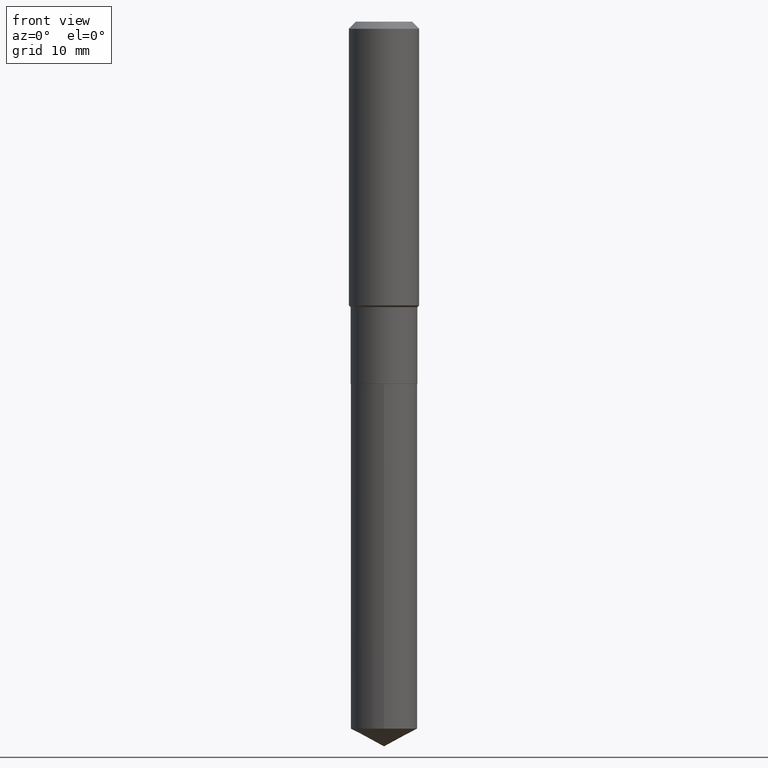
[diagram: clean part render]
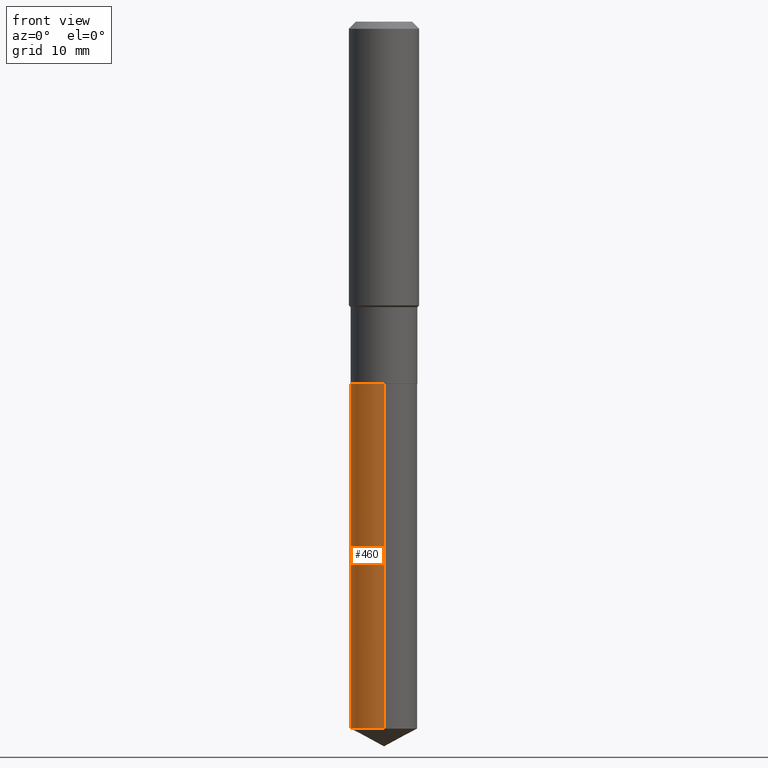
[diagram: same view with one face highlighted and labeled with its STEP entity id]
A machine part, front view. The second image highlights one B-rep face of the part: STEP entity #460.
In plain terms, the highlighted cylindrical surface (edge-blend (fillet) strip) has radius 4.7498 mm, axis along (-0, 0, 1).
Its self-contained STEP definition (entity closure, byte-faithful):
#1 = EDGE_CURVE ( 'NONE', #23, #146, #97, .T. ) ;
#7 = DIRECTION ( 'NONE',  ( -2.445495425185419561E-29, 3.491443218919681026E-15, 1.000000000000000000 ) ) ;
#23 = VERTEX_POINT ( 'NONE', #353 ) ;
#43 = DIRECTION ( 'NONE',  ( -6.982962677686266711E-15, -1.000000000000000000, 2.921762560068730595E-15 ) ) ;
#47 = CARTESIAN_POINT ( 'NONE',  ( -1.305814020727282303E-15, -0.1870000000000070772, -2.027499999999999414 ) ) ;
#57 = DIRECTION ( 'NONE',  ( -6.982962677686266711E-15, -1.000000000000000000, 2.921762560068730595E-15 ) ) ;
#58 = ORIENTED_EDGE ( 'NONE', *, *, #382, .F. ) ;
#66 = CARTESIAN_POINT ( 'NONE',  ( 4.958188004540364383E-29, -7.078978414504478595E-15, -2.027500000000000302 ) ) ;
#68 = DIRECTION ( 'NONE',  ( -2.445495425185419841E-29, 3.491443218919680631E-15, 1.000000000000000000 ) ) ;
#89 = DIRECTION ( 'NONE',  ( -2.445495425185419841E-29, 3.491443218919680631E-15, 1.000000000000000000 ) ) ;
#97 = CIRCLE ( 'NONE', #185, 0.1869999999999999996 ) ;
#128 = CARTESIAN_POINT ( 'NONE',  ( 1.328714915871436648E-15, 0.1869999999999929496, -2.027500000000000746 ) ) ;
#146 = VERTEX_POINT ( 'NONE', #150 ) ;
#150 = CARTESIAN_POINT ( 'NONE',  ( -1.305814020727234577E-15, -0.1870000000000137386, -3.955670336279303534 ) ) ;
#168 = VECTOR ( 'NONE', #7, 39.37007874015748143 ) ;
#185 = AXIS2_PLACEMENT_3D ( 'NONE', #436, #89, #57 ) ;
#194 = EDGE_LOOP ( 'NONE', ( #58, #391, #387, #441 ) ) ;
#215 = LINE ( 'NONE', #295, #168 ) ;
#224 = VERTEX_POINT ( 'NONE', #47 ) ;
#226 = AXIS2_PLACEMENT_3D ( 'NONE', #66, #68, #43 ) ;
#238 = DIRECTION ( 'NONE',  ( -6.982962677686266711E-15, -1.000000000000000000, 2.921762560068730595E-15 ) ) ;
#268 = VECTOR ( 'NONE', #448, 39.37007874015748143 ) ;
#269 = CARTESIAN_POINT ( 'NONE',  ( 1.328714915871483980E-15, 0.1869999999999929219, -2.027500000000000746 ) ) ;
#270 = VERTEX_POINT ( 'NONE', #269 ) ;
#275 = CARTESIAN_POINT ( 'NONE',  ( 4.958188004540364383E-29, -7.078978414504478595E-15, -2.027500000000000302 ) ) ;
#295 = CARTESIAN_POINT ( 'NONE',  ( -1.305814020727282303E-15, -0.1870000000000070772, -2.027499999999999414 ) ) ;
#353 = CARTESIAN_POINT ( 'NONE',  ( 1.328714915871483585E-15, 0.1869999999999861495, -3.955670336279304422 ) ) ;
#382 = EDGE_CURVE ( 'NONE', #23, #270, #451, .T. ) ;
#387 = ORIENTED_EDGE ( 'NONE', *, *, #468, .T. ) ;
#391 = ORIENTED_EDGE ( 'NONE', *, *, #1, .T. ) ;
#392 = EDGE_CURVE ( 'NONE', #270, #224, #421, .T. ) ;
#411 = CYLINDRICAL_SURFACE ( 'NONE', #226, 0.1869999999999999996 ) ;
#421 = CIRCLE ( 'NONE', #485, 0.1869999999999999996 ) ;
#436 = CARTESIAN_POINT ( 'NONE',  ( 9.673519740889634982E-29, -1.381107566002893421E-14, -3.955670336279303978 ) ) ;
#441 = ORIENTED_EDGE ( 'NONE', *, *, #392, .F. ) ;
#444 = DIRECTION ( 'NONE',  ( -2.445495425185419841E-29, 3.491443218919680631E-15, 1.000000000000000000 ) ) ;
#447 = FACE_OUTER_BOUND ( 'NONE', #194, .T. ) ;
#448 = DIRECTION ( 'NONE',  ( -2.445495425185419561E-29, 3.491443218919681026E-15, 1.000000000000000000 ) ) ;
#451 = LINE ( 'NONE', #128, #268 ) ;
#460 = ADVANCED_FACE ( 'NONE', ( #447 ), #411, .T. ) ;
#468 = EDGE_CURVE ( 'NONE', #146, #224, #215, .T. ) ;
#485 = AXIS2_PLACEMENT_3D ( 'NONE', #275, #444, #238 ) ;